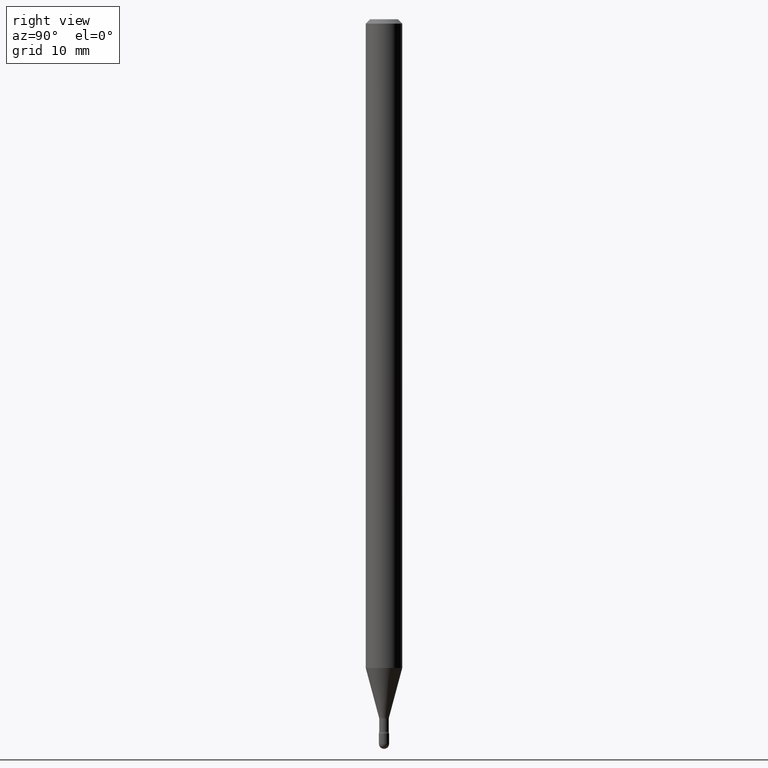
[diagram: clean part render]
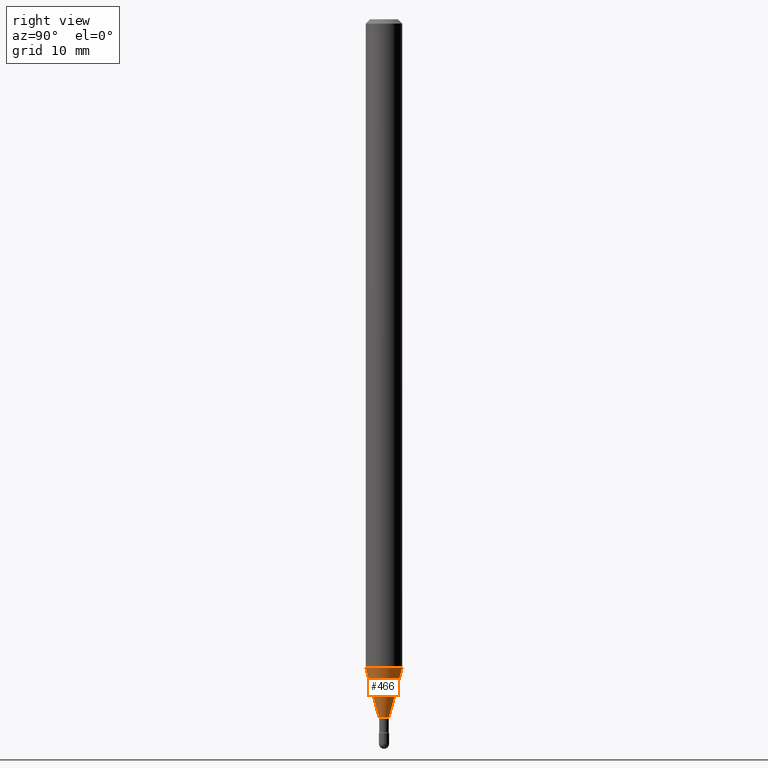
[diagram: same view with one face highlighted and labeled with its STEP entity id]
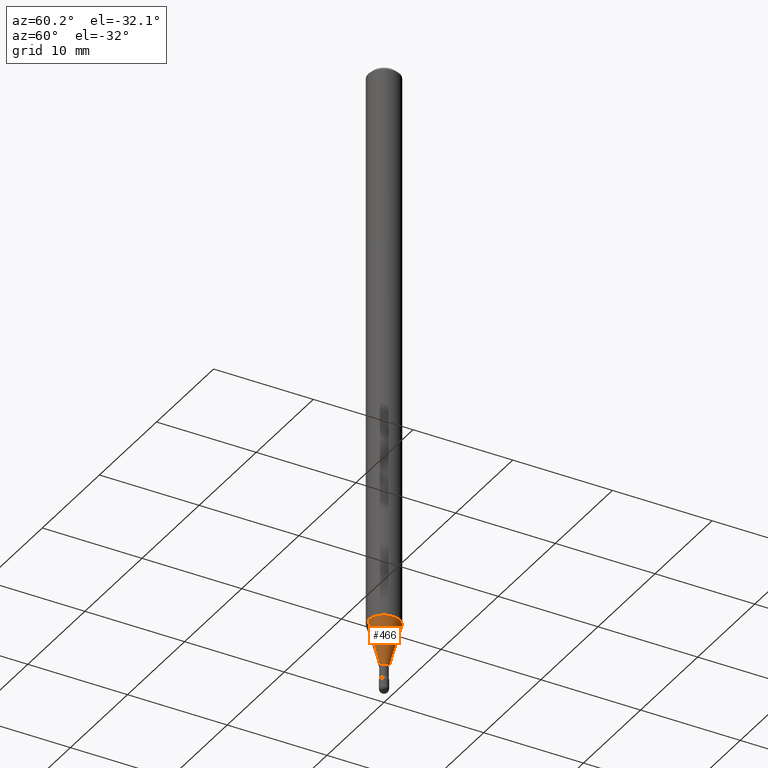
[diagram: same view with one face highlighted and labeled with its STEP entity id]
A machine part, right view. The second image highlights one B-rep face of the part: STEP entity #466.
A second angle (auxiliary view) of the same face is appended — the face is thin or edge-on in the first view.
In plain terms, the highlighted conical surface has half-angle 15 deg.
Its self-contained STEP definition (entity closure, byte-faithful):
#10 = ORIENTED_EDGE ( 'NONE', *, *, #193, .F. ) ;
#26 = CARTESIAN_POINT ( 'NONE',  ( -1.184388162973270680E-16, -0.01696111260567232867, -2.393092501787273285 ) ) ;
#49 = VERTEX_POINT ( 'NONE', #361 ) ;
#50 = DIRECTION ( 'NONE',  ( -6.982962677686265922E-15, -1.000000000000000000, 4.370956789862821150E-15 ) ) ;
#52 = ORIENTED_EDGE ( 'NONE', *, *, #173, .F. ) ;
#66 = EDGE_CURVE ( 'NONE', #429, #351, #385, .T. ) ;
#67 = DIRECTION ( 'NONE',  ( -1.807323732225328562E-15, -0.2588190451025179639, 0.9659258262890690894 ) ) ;
#90 = CARTESIAN_POINT ( 'NONE',  ( -1.184388162973270680E-16, -0.01696111260567232867, -2.393092501787273285 ) ) ;
#93 = ORIENTED_EDGE ( 'NONE', *, *, #145, .T. ) ;
#95 = AXIS2_PLACEMENT_3D ( 'NONE', #238, #116, #274 ) ;
#102 = EDGE_LOOP ( 'NONE', ( #382, #93, #10, #52 ) ) ;
#106 = CONICAL_SURFACE ( 'NONE', #349, 0.01696111260566397425, 0.2617993877991500740 ) ;
#116 = DIRECTION ( 'NONE',  ( -2.445476480015523833E-29, 3.491470349481263853E-15, 1.000000000000000000 ) ) ;
#127 = CARTESIAN_POINT ( 'NONE',  ( 5.852251427622284695E-29, -8.355411513556201867E-15, -2.393092501787273285 ) ) ;
#145 = EDGE_CURVE ( 'NONE', #351, #49, #325, .T. ) ;
#164 = LINE ( 'NONE', #26, #181 ) ;
#165 = DIRECTION ( 'NONE',  ( 1.839019923739598738E-15, 0.2588190451025247363, 0.9659258262890673130 ) ) ;
#173 = EDGE_CURVE ( 'NONE', #429, #187, #164, .T. ) ;
#181 = VECTOR ( 'NONE', #67, 39.37007874015748854 ) ;
#187 = VERTEX_POINT ( 'NONE', #461 ) ;
#193 = EDGE_CURVE ( 'NONE', #187, #49, #302, .T. ) ;
#238 = CARTESIAN_POINT ( 'NONE',  ( 5.852251427622284695E-29, -8.355411513556201867E-15, -2.393092501787273285 ) ) ;
#241 = CARTESIAN_POINT ( 'NONE',  ( 5.436634283795472207E-29, -7.762024111851079377E-15, -2.223139060311453363 ) ) ;
#274 = DIRECTION ( 'NONE',  ( -6.982962677686266711E-15, -1.000000000000000000, 0.000000000000000000 ) ) ;
#302 = CIRCLE ( 'NONE', #402, 0.06250000000000000000 ) ;
#325 = LINE ( 'NONE', #452, #377 ) ;
#327 = DIRECTION ( 'NONE',  ( -2.445476480015523833E-29, 3.491470349481263853E-15, 1.000000000000000000 ) ) ;
#349 = AXIS2_PLACEMENT_3D ( 'NONE', #127, #327, #503 ) ;
#351 = VERTEX_POINT ( 'NONE', #449 ) ;
#361 = CARTESIAN_POINT ( 'NONE',  ( 4.440892098501167517E-16, 0.06249999999999222150, -2.223139060311453807 ) ) ;
#377 = VECTOR ( 'NONE', #165, 39.37007874015748854 ) ;
#382 = ORIENTED_EDGE ( 'NONE', *, *, #66, .T. ) ;
#385 = CIRCLE ( 'NONE', #95, 0.01696111260566397425 ) ;
#402 = AXIS2_PLACEMENT_3D ( 'NONE', #241, #433, #50 ) ;
#429 = VERTEX_POINT ( 'NONE', #90 ) ;
#433 = DIRECTION ( 'NONE',  ( -2.445476480015523833E-29, 3.491470349481263853E-15, 1.000000000000000000 ) ) ;
#449 = CARTESIAN_POINT ( 'NONE',  ( 2.823025816869058306E-16, 0.01696111260565561982, -2.393092501787273285 ) ) ;
#452 = CARTESIAN_POINT ( 'NONE',  ( 1.205159535236945149E-16, 0.01696111260565561982, -2.393092501787273285 ) ) ;
#461 = CARTESIAN_POINT ( 'NONE',  ( -4.364351673553374352E-16, -0.06250000000000777156, -2.223139060311453363 ) ) ;
#466 = ADVANCED_FACE ( 'NONE', ( #509 ), #106, .T. ) ;
#503 = DIRECTION ( 'NONE',  ( -6.982962677686266711E-15, -1.000000000000000000, 0.000000000000000000 ) ) ;
#509 = FACE_OUTER_BOUND ( 'NONE', #102, .T. ) ;